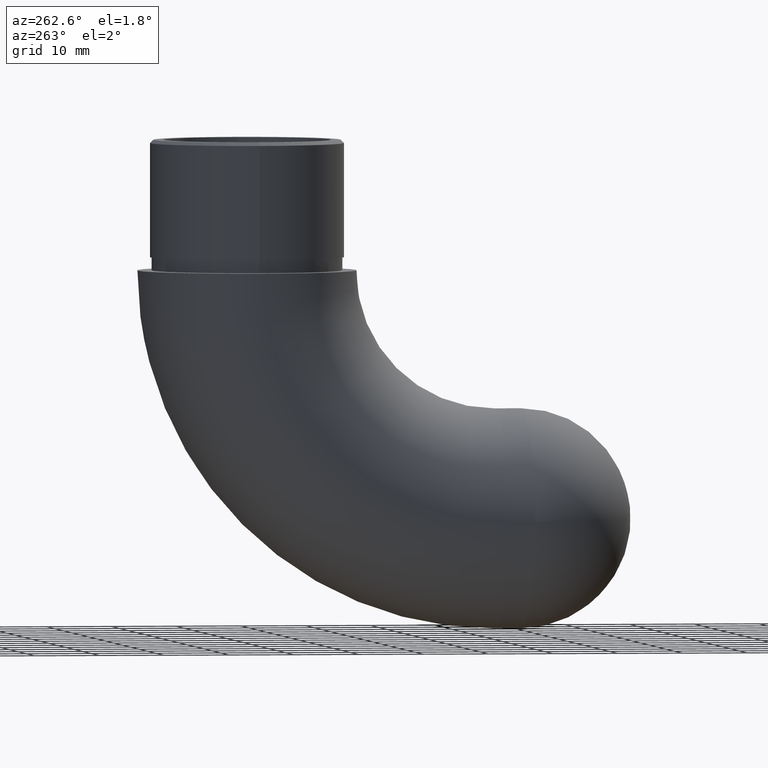
[diagram: clean part render]
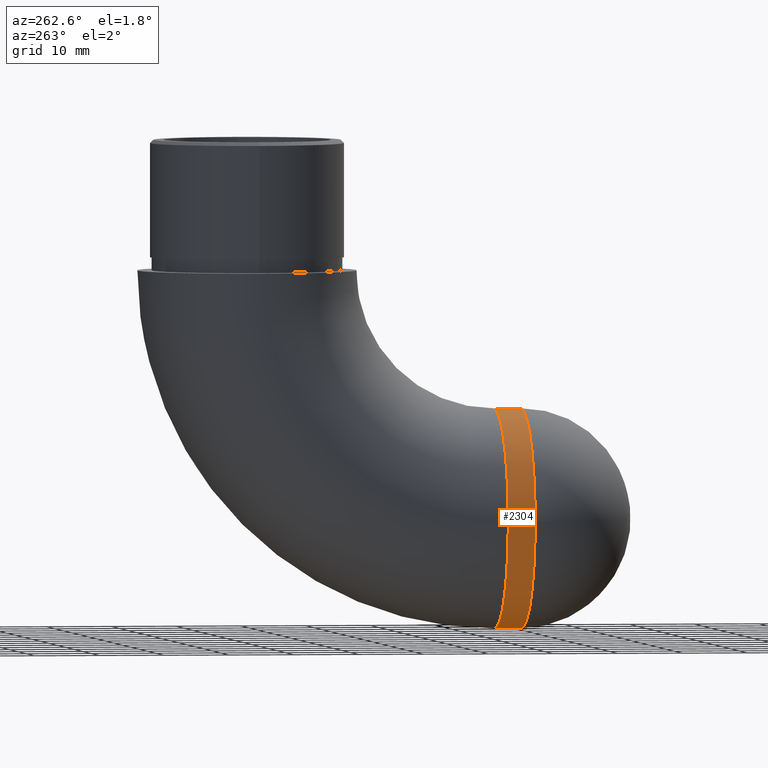
[diagram: same view with one face highlighted and labeled with its STEP entity id]
A machine part, auxiliary view. The second image highlights one B-rep face of the part: STEP entity #2304.
In plain terms, the highlighted cylindrical surface (partial cylindrical patch) has radius 16.85 mm, axis along (-0, -1, -0).
Its self-contained STEP definition (entity closure, byte-faithful):
#100 = CARTESIAN_POINT ( 'NONE',  ( 2.063529856563291822E-15, -20.99999999999999645, -21.29999999999996163 ) ) ;
#792 = CARTESIAN_POINT ( 'NONE',  ( 0.000000000000000000, -20.99999999999999645, -54.99999999999999289 ) ) ;
#807 = EDGE_CURVE ( 'NONE', #7278, #12162, #2239, .T. ) ;
#1047 = VERTEX_POINT ( 'NONE', #5498 ) ;
#1268 = EDGE_CURVE ( 'NONE', #8908, #12162, #7307, .T. ) ;
#1520 = DIRECTION ( 'NONE',  ( -0.000000000000000000, -1.000000000000000000, -0.000000000000000000 ) ) ;
#1566 = ORIENTED_EDGE ( 'NONE', *, *, #2730, .F. ) ;
#2058 = CARTESIAN_POINT ( 'NONE',  ( 0.000000000000000000, -4.149999999999997691, -38.14999999999997726 ) ) ;
#2095 = AXIS2_PLACEMENT_3D ( 'NONE', #10661, #4114, #5914 ) ;
#2146 = EDGE_CURVE ( 'NONE', #1047, #7278, #4490, .T. ) ;
#2239 = LINE ( 'NONE', #792, #2557 ) ;
#2304 = ADVANCED_FACE ( 'NONE', ( #7127 ), #9666, .T. ) ;
#2557 = VECTOR ( 'NONE', #6444, 1000.000000000000000 ) ;
#2730 = EDGE_CURVE ( 'NONE', #1047, #8908, #10701, .T. ) ;
#3056 = DIRECTION ( 'NONE',  ( -0.000000000000000000, -1.000000000000000000, -0.000000000000000000 ) ) ;
#3715 = VECTOR ( 'NONE', #6921, 1000.000000000000000 ) ;
#4114 = DIRECTION ( 'NONE',  ( -0.000000000000000000, -1.000000000000000000, -0.000000000000000000 ) ) ;
#4490 = CIRCLE ( 'NONE', #2095, 16.85000000000001918 ) ;
#5051 = ORIENTED_EDGE ( 'NONE', *, *, #807, .T. ) ;
#5362 = ORIENTED_EDGE ( 'NONE', *, *, #1268, .F. ) ;
#5498 = CARTESIAN_POINT ( 'NONE',  ( 2.063529856563292216E-15, 3.469446951953614189E-15, -21.29999999999995808 ) ) ;
#5914 = DIRECTION ( 'NONE',  ( 0.000000000000000000, 0.000000000000000000, -1.000000000000000000 ) ) ;
#6444 = DIRECTION ( 'NONE',  ( -0.000000000000000000, -1.000000000000000000, -0.000000000000000000 ) ) ;
#6790 = CARTESIAN_POINT ( 'NONE',  ( 0.000000000000000000, -4.149999999999997691, -21.29999999999997939 ) ) ;
#6921 = DIRECTION ( 'NONE',  ( -0.000000000000000000, -1.000000000000000000, -0.000000000000000000 ) ) ;
#7127 = FACE_OUTER_BOUND ( 'NONE', #10699, .T. ) ;
#7208 = CARTESIAN_POINT ( 'NONE',  ( 0.000000000000000000, -20.99999999999999645, -38.14999999999997726 ) ) ;
#7278 = VERTEX_POINT ( 'NONE', #8851 ) ;
#7307 = CIRCLE ( 'NONE', #8886, 16.85000000000001208 ) ;
#7900 = AXIS2_PLACEMENT_3D ( 'NONE', #7208, #1520, #10968 ) ;
#8776 = ORIENTED_EDGE ( 'NONE', *, *, #2146, .T. ) ;
#8796 = DIRECTION ( 'NONE',  ( 0.000000000000000000, 0.000000000000000000, -1.000000000000000000 ) ) ;
#8851 = CARTESIAN_POINT ( 'NONE',  ( 0.000000000000000000, 3.469446951953614189E-15, -54.99999999999999289 ) ) ;
#8886 = AXIS2_PLACEMENT_3D ( 'NONE', #2058, #3056, #8796 ) ;
#8908 = VERTEX_POINT ( 'NONE', #6790 ) ;
#9666 = CYLINDRICAL_SURFACE ( 'NONE', #7900, 16.85000000000001918 ) ;
#10661 = CARTESIAN_POINT ( 'NONE',  ( 0.000000000000000000, 3.469446951953614189E-15, -38.14999999999997726 ) ) ;
#10699 = EDGE_LOOP ( 'NONE', ( #1566, #8776, #5051, #5362 ) ) ;
#10701 = LINE ( 'NONE', #100, #3715 ) ;
#10968 = DIRECTION ( 'NONE',  ( 0.000000000000000000, 0.000000000000000000, -1.000000000000000000 ) ) ;
#11233 = CARTESIAN_POINT ( 'NONE',  ( -2.063529856563289850E-15, -4.149999999999997691, -54.99999999999998579 ) ) ;
#12162 = VERTEX_POINT ( 'NONE', #11233 ) ;